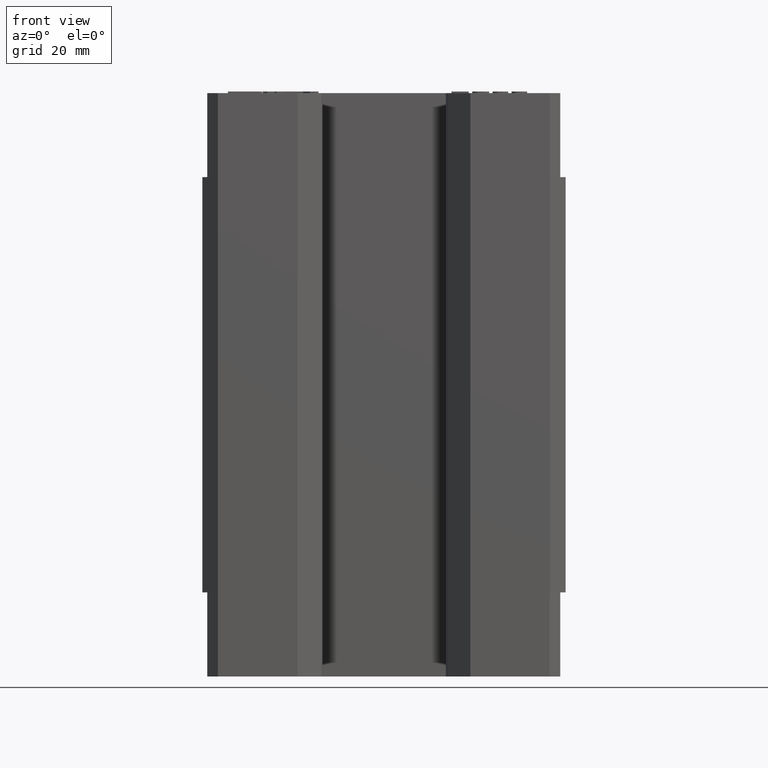
[diagram: clean part render]
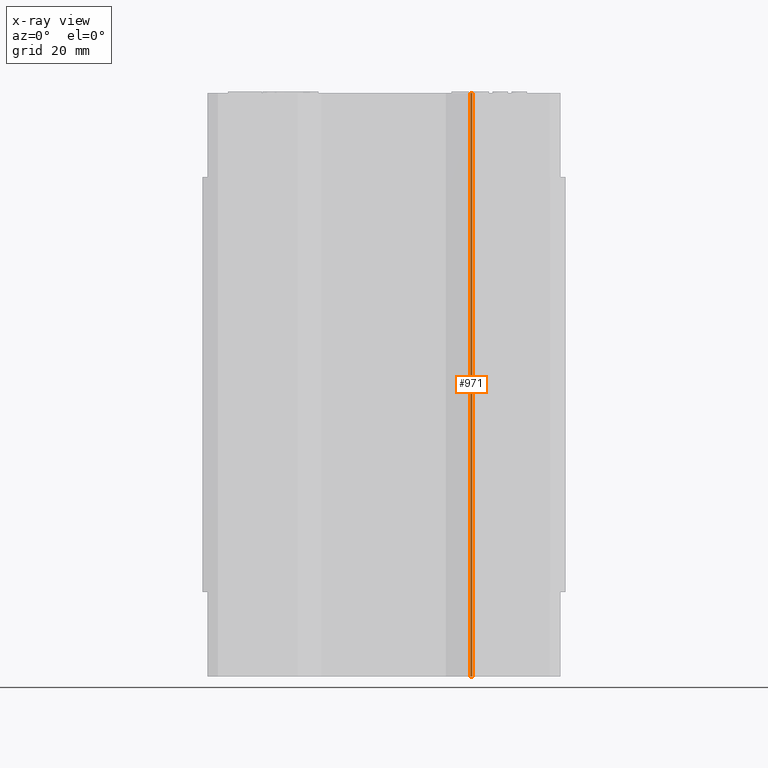
[diagram: x-ray — body ghosted, one internal face saturated and labeled with its STEP entity id]
A machine part, front view, then the same camera in x-ray: the body is ghosted and one INTERNAL B-rep face — a face not visible from any outside direction — is saturated and labeled: STEP entity #971.
In plain terms, the highlighted planar face has unit normal (-0.7071, -0.7071, 0).
Its self-contained STEP definition (entity closure, byte-faithful):
#931 = VERTEX_POINT ( 'NONE', #7086 ) ;
#934 = ORIENTED_EDGE ( 'NONE', *, *, #1058, .F. ) ;
#971 = ADVANCED_FACE ( 'NONE', ( #7155 ), #7154, .T. ) ;
#973 = EDGE_LOOP ( 'NONE', ( #975, #934, #1062, #1025 ) ) ;
#975 = ORIENTED_EDGE ( 'NONE', *, *, #976, .T. ) ;
#976 = EDGE_CURVE ( 'NONE', #978, #931, #7144, .T. ) ;
#978 = VERTEX_POINT ( 'NONE', #7140 ) ;
#1025 = ORIENTED_EDGE ( 'NONE', *, *, #1027, .F. ) ;
#1027 = EDGE_CURVE ( 'NONE', #978, #1066, #7244, .T. ) ;
#1058 = EDGE_CURVE ( 'NONE', #1060, #931, #7323, .T. ) ;
#1060 = VERTEX_POINT ( 'NONE', #7319 ) ;
#1062 = ORIENTED_EDGE ( 'NONE', *, *, #1064, .T. ) ;
#1064 = EDGE_CURVE ( 'NONE', #1060, #1066, #7315, .T. ) ;
#1066 = VERTEX_POINT ( 'NONE', #7307 ) ;
#7086 = CARTESIAN_POINT ( 'NONE',  ( 16.99999999999980100, -3.748578643756200500, -56.20000000000001000 ) ) ;
#7140 = CARTESIAN_POINT ( 'NONE',  ( 16.62260214931992100, -3.371180793077845000, -56.20000000000001000 ) ) ;
#7141 = DIRECTION ( 'NONE',  ( 0.7071067811872975300, -0.7071067811857975100, 0.0000000000000000000 ) ) ;
#7142 = VECTOR ( 'NONE', #7141, 1000.000000000000000 ) ;
#7143 = CARTESIAN_POINT ( 'NONE',  ( 16.62260214931999900, -3.371180793078000000, -56.20000000000001000 ) ) ;
#7144 = LINE ( 'NONE', #7143, #7142 ) ;
#7150 = DIRECTION ( 'NONE',  ( 0.7071067811872975300, -0.7071067811857975100, 0.0000000000000000000 ) ) ;
#7151 = DIRECTION ( 'NONE',  ( -0.7071067811857975100, -0.7071067811872975300, 0.0000000000000000000 ) ) ;
#7152 = CARTESIAN_POINT ( 'NONE',  ( 16.62260214931999900, -3.371180793078000000, -40.00000000000000000 ) ) ;
#7153 = AXIS2_PLACEMENT_3D ( 'NONE', #7152, #7151, #7150 ) ;
#7154 = PLANE ( 'NONE',  #7153 ) ;
#7155 = FACE_OUTER_BOUND ( 'NONE', #973, .T. ) ;
#7241 = DIRECTION ( 'NONE',  ( 0.0000000000000000000, 0.0000000000000000000, 1.000000000000000000 ) ) ;
#7242 = VECTOR ( 'NONE', #7241, 1000.000000000000000 ) ;
#7243 = CARTESIAN_POINT ( 'NONE',  ( 16.62260214932000900, -3.371180793077851200, -40.00000000000000000 ) ) ;
#7244 = LINE ( 'NONE', #7243, #7242 ) ;
#7307 = CARTESIAN_POINT ( 'NONE',  ( 16.62260214931992100, -3.371180793077845000, 56.20000000000001000 ) ) ;
#7308 = DIRECTION ( 'NONE',  ( -0.7071067811872975300, 0.7071067811857975100, 0.0000000000000000000 ) ) ;
#7309 = VECTOR ( 'NONE', #7308, 1000.000000000000000 ) ;
#7310 = CARTESIAN_POINT ( 'NONE',  ( 16.62260214931999900, -3.371180793078000000, 56.20000000000001000 ) ) ;
#7315 = LINE ( 'NONE', #7310, #7309 ) ;
#7319 = CARTESIAN_POINT ( 'NONE',  ( 17.00000000000000000, -3.748578643756601500, 56.20000000000001000 ) ) ;
#7320 = DIRECTION ( 'NONE',  ( 0.0000000000000000000, 0.0000000000000000000, -1.000000000000000000 ) ) ;
#7321 = VECTOR ( 'NONE', #7320, 1000.000000000000000 ) ;
#7322 = CARTESIAN_POINT ( 'NONE',  ( 17.00000000000000000, -3.748578643755999800, -40.00000000000000000 ) ) ;
#7323 = LINE ( 'NONE', #7322, #7321 ) ;